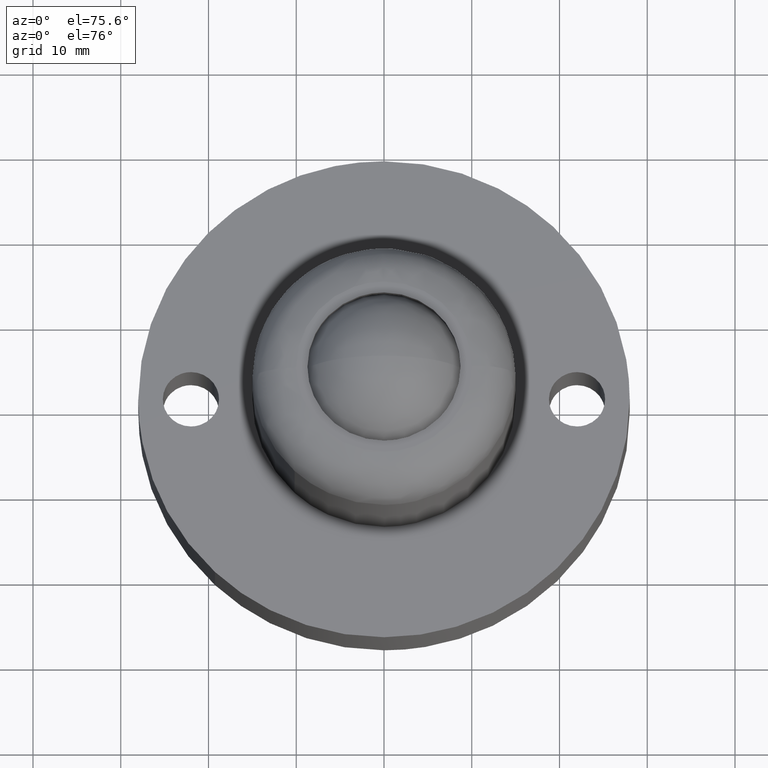
[diagram: clean part render]
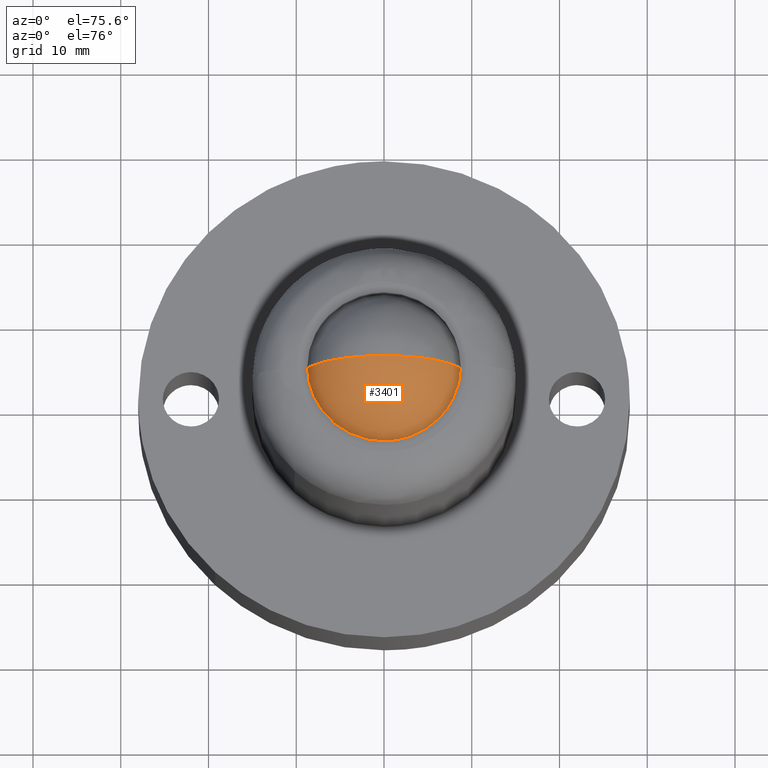
[diagram: same view with one face highlighted and labeled with its STEP entity id]
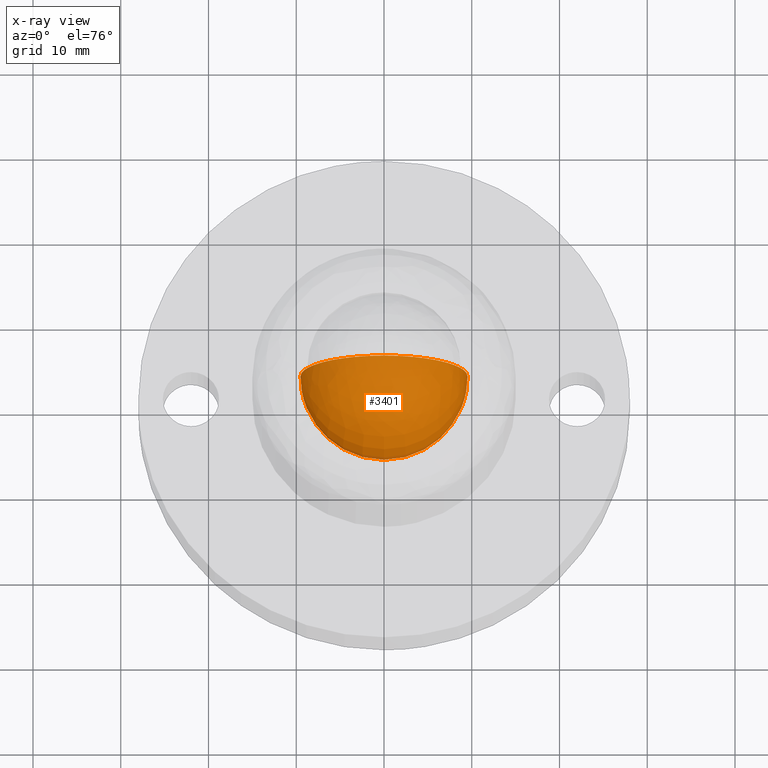
[diagram: x-ray of the same camera — body ghosted, the highlighted face saturated]
A machine part, auxiliary view. The second image highlights one B-rep face of the part: STEP entity #3401.
The next image is the same camera in x-ray: the body ghosted, the highlighted face saturated — about 0% of this face is hidden behind the body in this view.
In plain terms, the highlighted face is a freeform B-spline surface patch.
Its self-contained STEP definition (entity closure, byte-faithful):
#3284=CARTESIAN_POINT('',(-6.243690174262825,3.571875000000000,10.231309825737071));
#3285=CARTESIAN_POINT('',(-5.654662799332363,2.336320754716982,8.935449600890051));
#3286=CARTESIAN_POINT('',(-2.378548637814344,0.453571428571429,6.960805448742200));
#3287=CARTESIAN_POINT('',(2.378548637814557,0.453571428571429,6.960805448742200));
#3288=CARTESIAN_POINT('',(5.654662799332574,2.336320754716982,8.935449600890051));
#3289=CARTESIAN_POINT('',(6.243690174263038,3.571875000000000,10.231309825737071));
#3290=CARTESIAN_POINT('',(-7.539550399109849,2.336320754716982,10.820337200667536));
#3291=CARTESIAN_POINT('',(-7.135645913443243,0.453571428571429,9.339354086556652));
#3292=CARTESIAN_POINT('',(-3.222549767361407,-2.765322580645160,6.807350697915465));
#3293=CARTESIAN_POINT('',(3.222549767361620,-2.765322580645160,6.807350697915465));
#3294=CARTESIAN_POINT('',(7.135645913443457,0.453571428571429,9.339354086556652));
#3295=CARTESIAN_POINT('',(7.539550399110065,2.336320754716982,10.820337200667536));
#3296=CARTESIAN_POINT('',(-9.514194551257695,0.453571428571429,14.096451362185551));
#3297=CARTESIAN_POINT('',(-9.667649302084431,-2.765322580645160,13.252450232638489));
#3298=CARTESIAN_POINT('',(-4.994952139410239,-9.524999999999997,11.480047860589661));
#3299=CARTESIAN_POINT('',(4.994952139410453,-9.524999999999997,11.480047860589661));
#3300=CARTESIAN_POINT('',(9.667649302084644,-2.765322580645160,13.252450232638489));
#3301=CARTESIAN_POINT('',(9.514194551257905,0.453571428571429,14.096451362185551));
#3302=CARTESIAN_POINT('',(-9.514194551257695,0.453571428571429,18.853548637814452));
#3303=CARTESIAN_POINT('',(-9.667649302084431,-2.765322580645160,19.697549767361515));
#3304=CARTESIAN_POINT('',(-4.994952139410239,-9.524999999999997,21.469952139410349));
#3305=CARTESIAN_POINT('',(4.994952139410453,-9.524999999999997,21.469952139410349));
#3306=CARTESIAN_POINT('',(9.667649302084644,-2.765322580645160,19.697549767361515));
#3307=CARTESIAN_POINT('',(9.514194551257905,0.453571428571429,18.853548637814452));
#3308=CARTESIAN_POINT('',(-7.539550399109849,2.336320754716982,22.129662799332472));
#3309=CARTESIAN_POINT('',(-7.135645913443243,0.453571428571429,23.610645913443353));
#3310=CARTESIAN_POINT('',(-3.222549767361407,-2.765322580645160,26.142649302084543));
#3311=CARTESIAN_POINT('',(3.222549767361620,-2.765322580645160,26.142649302084543));
#3312=CARTESIAN_POINT('',(7.135645913443457,0.453571428571429,23.610645913443353));
#3313=CARTESIAN_POINT('',(7.539550399110065,2.336320754716982,22.129662799332472));
#3314=CARTESIAN_POINT('',(-6.243690174262825,3.571875000000000,22.718690174262932));
#3315=CARTESIAN_POINT('',(-5.654662799332363,2.336320754716982,24.014550399109964));
#3316=CARTESIAN_POINT('',(-2.378548637814344,0.453571428571429,25.989194551257803));
#3317=CARTESIAN_POINT('',(2.378548637814557,0.453571428571429,25.989194551257803));
#3318=CARTESIAN_POINT('',(5.654662799332574,2.336320754716982,24.014550399109964));
#3319=CARTESIAN_POINT('',(6.243690174263038,3.571875000000000,22.718690174262932));
#3327=(BOUNDED_SURFACE()B_SPLINE_SURFACE(2,2,((#3284,#3290,#3296,#3302,#3308,#3314),(#3285,#3291,#3297,#3303,#3309,#3315),(#3286,#3292,#3298,#3304,#3310,#3316),(#3287,#3293,#3299,#3305,#3311,#3317),(#3288,#3294,#3300,#3306,#3312,#3318),(#3289,#3295,#3301,#3307,#3313,#3319)),.UNSPECIFIED.,.F.,.F.,.U.)B_SPLINE_SURFACE_WITH_KNOTS((3,1,1,1,3),(3,1,1,1,3),(0.0,8.782333431930280,17.564666863860559,26.347000295790838,35.129333727721118),(0.0,8.782333431930288,17.564666863860580,26.347000295790860,35.129333727721153),.UNSPECIFIED.)GEOMETRIC_REPRESENTATION_ITEM()RATIONAL_B_SPLINE_SURFACE(((3.200000000000000,2.650000000000000,2.100000000000000,2.100000000000000,2.650000000000000,3.200000000000000),(2.650000000000000,2.100000000000000,1.550000000000000,1.550000000000000,2.100000000000000,2.650000000000000),(2.100000000000000,1.550000000000000,1.0,1.0,1.550000000000000,2.100000000000000),(2.100000000000000,1.550000000000000,1.0,1.0,1.550000000000000,2.100000000000000),(2.650000000000000,2.100000000000000,1.550000000000000,1.550000000000000,2.100000000000000,2.650000000000000),(3.200000000000000,2.650000000000000,2.100000000000000,2.100000000000000,2.650000000000000,3.200000000000000)))REPRESENTATION_ITEM('')SURFACE());
#3328=CARTESIAN_POINT('',(-9.524999999999874,0.0,16.474999351647799));
#3329=VERTEX_POINT('',#3328);
#3330=CARTESIAN_POINT('',(1.065814E-013,0.0,6.949999999999999));
#3331=VERTEX_POINT('',#3330);
#3332=CARTESIAN_POINT('',(-9.524999999999874,0.0,16.474999351647799));
#3333=CARTESIAN_POINT('',(-9.525059442100412,0.0,15.910033345450820));
#3334=CARTESIAN_POINT('',(-9.445016663393243,0.0,15.013906932019440));
#3335=CARTESIAN_POINT('',(-9.151358211905382,0.0,13.760307781494060));
#3336=CARTESIAN_POINT('',(-8.710845721163159,0.0,12.528999540560131));
#3337=CARTESIAN_POINT('',(-7.983265858049935,0.0,11.187597075060420));
#3338=CARTESIAN_POINT('',(-7.042418862457285,0.0,10.012143701623209));
#3339=CARTESIAN_POINT('',(-5.944662344527943,0.0,8.986059364501225));
#3340=CARTESIAN_POINT('',(-4.815409372110459,0.0,8.211306804738703));
#3341=CARTESIAN_POINT('',(-3.317526202102793,0.0,7.497186981973879));
#3342=CARTESIAN_POINT('',(-1.753349175403995,0.0,7.053972220678271));
#3343=CARTESIAN_POINT('',(-0.545480409778117,0.0,6.949971444630465));
#3344=CARTESIAN_POINT('',(1.065814E-013,0.0,6.949999999999999));
#3345=B_SPLINE_CURVE_WITH_KNOTS('',3,(#3332,#3333,#3334,#3335,#3336,#3337,#3338,#3339,#3340,#3341,#3342,#3343,#3344),.UNSPECIFIED.,.F.,.U.,(4,1,1,1,1,1,1,1,1,1,4),(0.000000047657526,1.694884962941854,2.688455697959173,3.857355296625755,5.610711294759456,7.247167755796890,8.357591228361237,10.110942162784699,11.338283375079261,13.325408036328250,14.961858118077210),.UNSPECIFIED.);
#3346=EDGE_CURVE('',#3329,#3331,#3345,.T.);
#3347=ORIENTED_EDGE('',*,*,#3346,.T.);
#3348=CARTESIAN_POINT('',(9.525000000000084,0.0,16.474999351647789));
#3349=VERTEX_POINT('',#3348);
#3350=CARTESIAN_POINT('',(9.525000000000084,0.0,16.474999351647789));
#3351=CARTESIAN_POINT('',(9.525187268127581,0.0,15.715205270149839));
#3352=CARTESIAN_POINT('',(9.351568294058600,0.0,14.273654657187530));
#3353=CARTESIAN_POINT('',(8.745771189964115,0.0,12.596666833901910));
#3354=CARTESIAN_POINT('',(7.998423913591184,0.0,11.248826099310010));
#3355=CARTESIAN_POINT('',(7.250093342413789,0.0,10.246222576435960));
#3356=CARTESIAN_POINT('',(6.352965183881049,0.0,9.349151280750979));
#3357=CARTESIAN_POINT('',(5.449823208225398,0.0,8.635362959839201));
#3358=CARTESIAN_POINT('',(4.434076619410011,0.0,8.013766575075003));
#3359=CARTESIAN_POINT('',(3.095272055358497,0.0,7.420239875138966));
#3360=CARTESIAN_POINT('',(1.597489531971522,0.0,7.035294556923484));
#3361=CARTESIAN_POINT('',(0.487030481950518,0.0,6.949984029867777));
#3362=CARTESIAN_POINT('',(1.065814E-013,0.0,6.949999999999999));
#3363=B_SPLINE_CURVE_WITH_KNOTS('',3,(#3350,#3351,#3352,#3353,#3354,#3355,#3356,#3357,#3358,#3359,#3360,#3361,#3362),.UNSPECIFIED.,.F.,.U.,(4,1,1,1,1,1,1,1,1,1,4),(0.000000047660452,2.279333251347449,4.324913882037800,5.318474909973263,6.896506883291579,8.065351450649711,9.117379169587141,10.344718873095440,11.630509958336811,13.500758193624700,14.961858118077210),.UNSPECIFIED.);
#3364=EDGE_CURVE('',#3349,#3331,#3363,.T.);
#3365=ORIENTED_EDGE('',*,*,#3364,.F.);
#3366=CARTESIAN_POINT('',(1.065814E-013,0.0,26.0));
#3367=VERTEX_POINT('',#3366);
#3368=CARTESIAN_POINT('',(1.065814E-013,0.0,26.0));
#3369=CARTESIAN_POINT('',(0.759797809474835,0.0,26.000199882886228));
#3370=CARTESIAN_POINT('',(1.987038837309398,0.0,25.852316955445811));
#3371=CARTESIAN_POINT('',(3.455306587986827,0.0,25.377196213237280));
#3372=CARTESIAN_POINT('',(4.640094622751206,0.0,24.825718442010231));
#3373=CARTESIAN_POINT('',(5.645585416987983,0.0,24.184675639542419));
#3374=CARTESIAN_POINT('',(6.655506272186719,0.0,23.324228248888900));
#3375=CARTESIAN_POINT('',(7.537239465378675,0.0,22.357398218102318));
#3376=CARTESIAN_POINT('',(8.253854500405637,0.0,21.284911316719331));
#3377=CARTESIAN_POINT('',(8.847944861942406,0.0,20.077036861560678));
#3378=CARTESIAN_POINT('',(9.366316018273844,0.0,18.539967452099511));
#3379=CARTESIAN_POINT('',(9.525182868712932,0.0,17.254273834516990));
#3380=CARTESIAN_POINT('',(9.525000000000084,0.0,16.474999351647789));
#3381=B_SPLINE_CURVE_WITH_KNOTS('',3,(#3368,#3369,#3370,#3371,#3372,#3373,#3374,#3375,#3376,#3377,#3378,#3379,#3380),.UNSPECIFIED.,.F.,.U.,(4,1,1,1,1,1,1,1,1,1,4),(0.000000047610378,2.279333362648790,3.682020369050957,4.617143703839213,6.195146342860420,7.247168110112456,8.591363455697051,10.110942656908801,11.104504373590469,12.624079854803620,14.961858848922351),.UNSPECIFIED.);
#3382=EDGE_CURVE('',#3367,#3349,#3381,.T.);
#3383=ORIENTED_EDGE('',*,*,#3382,.F.);
#3384=CARTESIAN_POINT('',(1.065814E-013,0.0,26.0));
#3385=CARTESIAN_POINT('',(-0.642896201409722,0.0,26.000099363855298));
#3386=CARTESIAN_POINT('',(-1.694853759752355,0.0,25.893055075461309));
#3387=CARTESIAN_POINT('',(-3.182490619352266,0.0,25.486284456852811));
#3388=CARTESIAN_POINT('',(-4.545565478638347,0.0,24.897068554484250));
#3389=CARTESIAN_POINT('',(-5.824691044946529,0.0,24.064897817965921));
#3390=CARTESIAN_POINT('',(-7.051292405050364,0.0,22.946291172763519));
#3391=CARTESIAN_POINT('',(-8.135282710000404,0.0,21.557453717802670));
#3392=CARTESIAN_POINT('',(-8.991467545170796,0.0,19.816767680026160));
#3393=CARTESIAN_POINT('',(-9.439696268619851,0.0,18.072485272054230));
#3394=CARTESIAN_POINT('',(-9.525016625864950,0.0,16.962030139647450));
#3395=CARTESIAN_POINT('',(-9.524999999999874,0.0,16.474999351647799));
#3396=B_SPLINE_CURVE_WITH_KNOTS('',3,(#3384,#3385,#3386,#3387,#3388,#3389,#3390,#3391,#3392,#3393,#3394,#3395),.UNSPECIFIED.,.F.,.U.,(4,1,1,1,1,1,1,1,1,4),(0.000000047635552,1.928663280986186,3.156013451300241,4.617143703856227,6.370499001820862,7.714692143105189,9.584929603076706,11.630510526545059,13.500758853165220,14.961858848922340),.UNSPECIFIED.);
#3397=EDGE_CURVE('',#3367,#3329,#3396,.T.);
#3398=ORIENTED_EDGE('',*,*,#3397,.T.);
#3399=EDGE_LOOP('',(#3347,#3365,#3383,#3398));
#3400=FACE_OUTER_BOUND('',#3399,.T.);
#3401=ADVANCED_FACE('',(#3400),#3327,.T.);